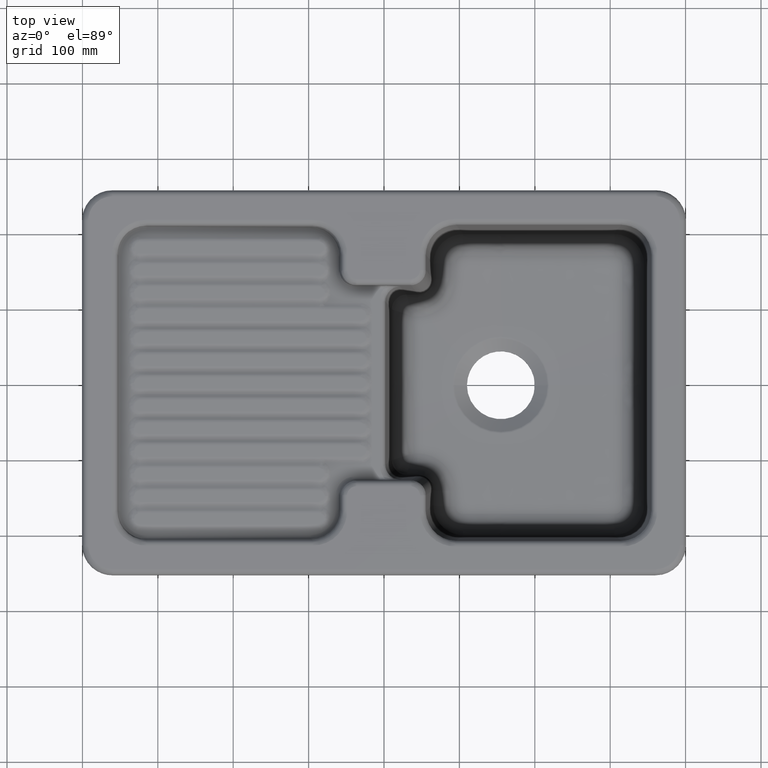
[diagram: clean part render]
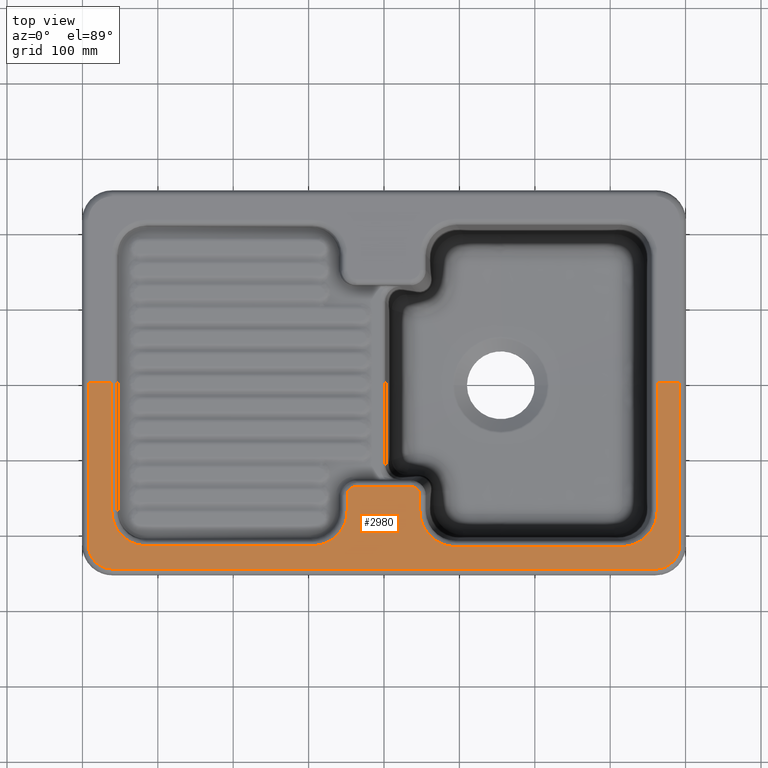
[diagram: same view with one face highlighted and labeled with its STEP entity id]
A machine part, top view. The second image highlights one B-rep face of the part: STEP entity #2980.
In plain terms, the highlighted planar face has unit normal (0, 0, -1).
Its self-contained STEP definition (entity closure, byte-faithful):
#2099=B_SPLINE_CURVE_WITH_KNOTS('',3,(#29776,#29777,#29778,#29779,#29780,
#29781,#29782,#29783,#29784,#29785,#29786,#29787),.UNSPECIFIED.,.F.,.F.,
(4,2,2,2,2,4),(0.,0.249999999999995,0.374999999999993,0.499999999999991,
0.749999999999995,1.),.UNSPECIFIED.);
#2101=B_SPLINE_CURVE_WITH_KNOTS('',3,(#29873,#29874,#29875,#29876,#29877,
#29878,#29879,#29880,#29881,#29882,#29883,#29884),.UNSPECIFIED.,.F.,.F.,
(4,2,2,2,2,4),(0.,0.250000000000008,0.375000000000006,0.500000000000004,
0.750000000000002,1.),.UNSPECIFIED.);
#2215=B_SPLINE_CURVE_WITH_KNOTS('',3,(#33276,#33277,#33278,#33279,#33280,
#33281,#33282,#33283,#33284,#33285,#33286,#33287,#33288,#33289),
 .UNSPECIFIED.,.F.,.F.,(4,2,2,2,2,2,4),(0.,0.25,0.5,0.625,0.75,0.875,1.),
 .UNSPECIFIED.);
#2217=B_SPLINE_CURVE_WITH_KNOTS('',3,(#33370,#33371,#33372,#33373,#33374,
#33375,#33376,#33377,#33378,#33379,#33380,#33381,#33382,#33383),
 .UNSPECIFIED.,.F.,.F.,(4,2,2,2,2,2,4),(0.,0.249999999999997,0.499999999999994,
0.624999999999995,0.749999999999997,0.874999999999998,1.),.UNSPECIFIED.);
#2219=B_SPLINE_CURVE_WITH_KNOTS('',3,(#33458,#33459,#33460,#33461,#33462,
#33463),.UNSPECIFIED.,.F.,.F.,(4,2,4),(0.,0.5,1.),.UNSPECIFIED.);
#2221=B_SPLINE_CURVE_WITH_KNOTS('',3,(#33526,#33527,#33528,#33529,#33530,
#33531),.UNSPECIFIED.,.F.,.F.,(4,2,4),(0.,0.5,1.),.UNSPECIFIED.);
#2223=B_SPLINE_CURVE_WITH_KNOTS('',3,(#33598,#33599,#33600,#33601,#33602,
#33603,#33604,#33605,#33606,#33607,#33608,#33609,#33610,#33611),
 .UNSPECIFIED.,.F.,.F.,(4,2,2,2,2,2,4),(0.,0.250000000000003,0.500000000000006,
0.625000000000005,0.750000000000003,0.875000000000002,1.),.UNSPECIFIED.);
#2225=B_SPLINE_CURVE_WITH_KNOTS('',3,(#33673,#33674,#33675,#33676,#33677,
#33678,#33679,#33680,#33681,#33682,#33683,#33684,#33685,#33686),
 .UNSPECIFIED.,.F.,.F.,(4,2,2,2,2,2,4),(0.,0.25,0.5,0.625,0.75,0.875,1.),
 .UNSPECIFIED.);
#2980=ADVANCED_FACE('',(#3813),#3073,.F.);
#3073=PLANE('',#12418);
#3813=FACE_OUTER_BOUND('',#4578,.T.);
#4578=EDGE_LOOP('',(#8011,#8012,#8013,#8014,#8015,#8016,#8017,#8018,#8019,
#8020,#8021,#8022,#8023,#8024,#8025,#8026,#8027,#8028,#8029,#8030));
#8011=ORIENTED_EDGE('',*,*,#10918,.F.);
#8012=ORIENTED_EDGE('',*,*,#10510,.F.);
#8013=ORIENTED_EDGE('',*,*,#10514,.F.);
#8014=ORIENTED_EDGE('',*,*,#10517,.F.);
#8015=ORIENTED_EDGE('',*,*,#10919,.F.);
#8016=ORIENTED_EDGE('',*,*,#10500,.T.);
#8017=ORIENTED_EDGE('',*,*,#10931,.F.);
#8018=ORIENTED_EDGE('',*,*,#10868,.F.);
#8019=ORIENTED_EDGE('',*,*,#10867,.F.);
#8020=ORIENTED_EDGE('',*,*,#10864,.F.);
#8021=ORIENTED_EDGE('',*,*,#10861,.F.);
#8022=ORIENTED_EDGE('',*,*,#10858,.F.);
#8023=ORIENTED_EDGE('',*,*,#10855,.F.);
#8024=ORIENTED_EDGE('',*,*,#10852,.F.);
#8025=ORIENTED_EDGE('',*,*,#10849,.F.);
#8026=ORIENTED_EDGE('',*,*,#10846,.F.);
#8027=ORIENTED_EDGE('',*,*,#10843,.F.);
#8028=ORIENTED_EDGE('',*,*,#10840,.F.);
#8029=ORIENTED_EDGE('',*,*,#10928,.F.);
#8030=ORIENTED_EDGE('',*,*,#10499,.T.);
#8920=VERTEX_POINT('',#29644);
#8921=VERTEX_POINT('',#29648);
#8930=VERTEX_POINT('',#29734);
#8933=VERTEX_POINT('',#29752);
#8936=VERTEX_POINT('',#29774);
#8938=VERTEX_POINT('',#29788);
#8940=VERTEX_POINT('',#29856);
#8942=VERTEX_POINT('',#29871);
#9132=VERTEX_POINT('',#33256);
#9134=VERTEX_POINT('',#33275);
#9136=VERTEX_POINT('',#33340);
#9138=VERTEX_POINT('',#33353);
#9140=VERTEX_POINT('',#33434);
#9142=VERTEX_POINT('',#33445);
#9144=VERTEX_POINT('',#33502);
#9146=VERTEX_POINT('',#33513);
#9148=VERTEX_POINT('',#33570);
#9150=VERTEX_POINT('',#33581);
#9152=VERTEX_POINT('',#33662);
#9153=VERTEX_POINT('',#33687);
#10499=EDGE_CURVE('',#8930,#8920,#11116,.T.);
#10500=EDGE_CURVE('',#8921,#8933,#11117,.T.);
#10510=EDGE_CURVE('',#8936,#8938,#2099,.T.);
#10514=EDGE_CURVE('',#8940,#8936,#11125,.T.);
#10517=EDGE_CURVE('',#8942,#8940,#2101,.T.);
#10840=EDGE_CURVE('',#9134,#9132,#2215,.T.);
#10843=EDGE_CURVE('',#9132,#9136,#11158,.T.);
#10846=EDGE_CURVE('',#9136,#9138,#2217,.T.);
#10849=EDGE_CURVE('',#9138,#9140,#11159,.T.);
#10852=EDGE_CURVE('',#9140,#9142,#2219,.T.);
#10855=EDGE_CURVE('',#9142,#9144,#11160,.T.);
#10858=EDGE_CURVE('',#9144,#9146,#2221,.T.);
#10861=EDGE_CURVE('',#9146,#9148,#11161,.T.);
#10864=EDGE_CURVE('',#9148,#9150,#2223,.T.);
#10867=EDGE_CURVE('',#9150,#9152,#11162,.T.);
#10868=EDGE_CURVE('',#9152,#9153,#2225,.T.);
#10918=EDGE_CURVE('',#8938,#8920,#11178,.T.);
#10919=EDGE_CURVE('',#8921,#8942,#11179,.T.);
#10928=EDGE_CURVE('',#8930,#9134,#11182,.T.);
#10931=EDGE_CURVE('',#9153,#8933,#11183,.T.);
#11116=LINE('',#29755,#11371);
#11117=LINE('',#29756,#11372);
#11125=LINE('',#29858,#11380);
#11158=LINE('',#33349,#11413);
#11159=LINE('',#33441,#11414);
#11160=LINE('',#33509,#11415);
#11161=LINE('',#33577,#11416);
#11162=LINE('',#33671,#11417);
#11178=LINE('',#34306,#11433);
#11179=LINE('',#34308,#11434);
#11182=LINE('',#34373,#11437);
#11183=LINE('',#34387,#11438);
#11371=VECTOR('',#14068,1.);
#11372=VECTOR('',#14069,1.);
#11380=VECTOR('',#14097,1.);
#11413=VECTOR('',#14500,1.);
#11414=VECTOR('',#14507,1.);
#11415=VECTOR('',#14514,1.);
#11416=VECTOR('',#14521,1.);
#11417=VECTOR('',#14528,1.);
#11433=VECTOR('',#14594,1.);
#11434=VECTOR('',#14597,1.);
#11437=VECTOR('',#14608,1.);
#11438=VECTOR('',#14611,1.);
#12418=AXIS2_PLACEMENT_3D('',#34389,#14614,#14615);
#14068=DIRECTION('',(-1.,0.,0.));
#14069=DIRECTION('',(-1.,0.,0.));
#14097=DIRECTION('',(-1.,0.,0.));
#14500=DIRECTION('',(1.,0.,0.));
#14507=DIRECTION('',(0.,1.,0.));
#14514=DIRECTION('',(1.,0.,0.));
#14521=DIRECTION('',(0.,-1.,0.));
#14528=DIRECTION('',(1.,0.,0.));
#14594=DIRECTION('',(0.,1.,0.));
#14597=DIRECTION('',(0.,-1.,0.));
#14608=DIRECTION('',(0.,-1.,0.));
#14611=DIRECTION('',(0.,1.,0.));
#14614=DIRECTION('',(0.,0.,-1.));
#14615=DIRECTION('',(-0.843227198057324,-0.537557338761545,0.));
#29644=CARTESIAN_POINT('',(-392.274489801543,-1000.,1.27136050082167E-15));
#29648=CARTESIAN_POINT('',(392.274489801543,-1000.,7.87032690984846E-16));
#29734=CARTESIAN_POINT('',(-361.138615903832,-1000.,-6.73469210353864E-16));
#29752=CARTESIAN_POINT('',(362.460120689102,-1000.,-7.62351613413351E-15));
#29755=CARTESIAN_POINT('',(2.32730501537048E-11,-1000.,0.));
#29756=CARTESIAN_POINT('',(2.32730501537048E-11,-1000.,0.));
#29774=CARTESIAN_POINT('',(-360.293983336932,-1247.27448980154,1.21081952459207E-15));
#29776=CARTESIAN_POINT('',(-360.293983336932,-1247.27448980154,1.57406538196968E-15));
#29777=CARTESIAN_POINT('',(-364.517329554825,-1247.27448980154,1.57406538196968E-15));
#29778=CARTESIAN_POINT('',(-368.661595000097,-1246.44455137151,4.4273703293468E-15));
#29779=CARTESIAN_POINT('',(-374.469153580035,-1244.04030812303,4.4273703293468E-15));
#29780=CARTESIAN_POINT('',(-376.305504669587,-1243.05935085901,8.39109470512569E-16));
#29781=CARTESIAN_POINT('',(-379.780959229932,-1240.74151905375,8.39109470512569E-16));
#29782=CARTESIAN_POINT('',(-381.426765900565,-1239.39212300535,6.84526171871419E-16));
#29783=CARTESIAN_POINT('',(-385.851940693714,-1234.97013953948,6.84526171871419E-16));
#29784=CARTESIAN_POINT('',(-388.234774299186,-1231.40519631308,-2.05632370570894E-15));
#29785=CARTESIAN_POINT('',(-391.426785408092,-1223.71420346774,-2.05632370570894E-15));
#29786=CARTESIAN_POINT('',(-392.274489801543,-1219.51734794787,-1.73333694994851E-30));
#29787=CARTESIAN_POINT('',(-392.274489801543,-1215.29398333693,0.));
#29788=CARTESIAN_POINT('',(-392.274489801543,-1215.29398333693,-2.11893416803612E-16));
#29856=CARTESIAN_POINT('',(360.293983336932,-1247.27448980154,1.6951473344289E-15));
#29858=CARTESIAN_POINT('',(4.58834359395865E-13,-1247.27448980154,-2.32013964925119E-15));
#29871=CARTESIAN_POINT('',(392.274489801543,-1215.29398333693,-3.02704881148018E-16));
#29873=CARTESIAN_POINT('',(392.274489801543,-1215.29398333693,-1.21081952459207E-15));
#29874=CARTESIAN_POINT('',(392.274489801543,-1219.51732955483,-1.21081952459207E-15));
#29875=CARTESIAN_POINT('',(391.444551371508,-1223.6615950001,-2.84616664029437E-15));
#29876=CARTESIAN_POINT('',(389.040308123033,-1229.46915358004,-2.84616664029437E-15));
#29877=CARTESIAN_POINT('',(388.059350859005,-1231.30550466959,-5.70594439948545E-15));
#29878=CARTESIAN_POINT('',(385.741519053751,-1234.78095922993,-5.70594439948545E-15));
#29879=CARTESIAN_POINT('',(384.39212300535,-1236.42676590057,7.35865634761775E-15));
#29880=CARTESIAN_POINT('',(379.970139539484,-1240.85194069371,7.35865634761775E-15));
#29881=CARTESIAN_POINT('',(376.405196313082,-1243.23477429919,-6.01079237053386E-15));
#29882=CARTESIAN_POINT('',(368.714203467738,-1246.42678540809,-6.01079237053387E-15));
#29883=CARTESIAN_POINT('',(364.517347947873,-1247.27448980154,3.2740809054583E-30));
#29884=CARTESIAN_POINT('',(360.293983336932,-1247.27448980154,0.));
#33256=CARTESIAN_POINT('',(-314.774176241956,-1216.13861590383,-1.79591789427697E-15));
#33275=CARTESIAN_POINT('',(-361.138615903832,-1169.77417624196,6.2857126299694E-15));
#33276=CARTESIAN_POINT('',(-361.138615903832,-1169.77417624196,5.38775368283091E-15));
#33277=CARTESIAN_POINT('',(-361.138615903832,-1175.91279851482,5.3877536828309E-15));
#33278=CARTESIAN_POINT('',(-359.977217853305,-1182.02439924387,-2.8562594910022E-14));
#33279=CARTESIAN_POINT('',(-355.442352857194,-1193.26105264888,-2.8562594910022E-14));
#33280=CARTESIAN_POINT('',(-352.016683617962,-1198.47124465461,3.93406723000387E-14));
#33281=CARTESIAN_POINT('',(-345.57822537801,-1204.90270652843,3.93406723000387E-14));
#33282=CARTESIAN_POINT('',(-343.174918866313,-1206.85730476726,-3.74187096175895E-14));
#33283=CARTESIAN_POINT('',(-338.10683760873,-1210.18913072898,-3.74187096175895E-14));
#33284=CARTESIAN_POINT('',(-335.425868873907,-1211.58989507352,-1.48468044103225E-14));
#33285=CARTESIAN_POINT('',(-329.772167722518,-1213.86490270115,-1.48468044103225E-14));
#33286=CARTESIAN_POINT('',(-326.81372904715,-1214.72530053418,9.33400698900873E-15));
#33287=CARTESIAN_POINT('',(-320.864213959035,-1215.85555851891,9.33400698900873E-15));
#33288=CARTESIAN_POINT('',(-317.84267004131,-1216.13861590383,-3.23265220969855E-14));
#33289=CARTESIAN_POINT('',(-314.774176241956,-1216.13861590383,-3.23265220969855E-14));
#33340=CARTESIAN_POINT('',(-95.2258237580436,-1216.13861590383,-1.45918328910004E-14));
#33349=CARTESIAN_POINT('',(-205.,-1216.13861590383,-1.70933283958628E-15));
#33353=CARTESIAN_POINT('',(-48.8613840961683,-1169.77417624196,-8.97958947138486E-16));
#33370=CARTESIAN_POINT('',(-95.2258237580436,-1216.13861590383,-9.87754841852333E-15));
#33371=CARTESIAN_POINT('',(-89.0872014851833,-1216.13861590383,-9.87754841852333E-15));
#33372=CARTESIAN_POINT('',(-82.9756007561317,-1214.9772178533,2.39925797244185E-14));
#33373=CARTESIAN_POINT('',(-71.7389473511155,-1210.44235285719,2.39925797244185E-14));
#33374=CARTESIAN_POINT('',(-66.5287553453876,-1207.01668361796,-2.3358524178148E-14));
#33375=CARTESIAN_POINT('',(-60.0972934715674,-1200.57822537801,-2.3358524178148E-14));
#33376=CARTESIAN_POINT('',(-58.1426952327418,-1198.17491886631,-4.82822059581801E-15));
#33377=CARTESIAN_POINT('',(-54.8108692710158,-1193.10683760873,-4.828220595818E-15));
#33378=CARTESIAN_POINT('',(-53.4101049264782,-1190.42586887391,-2.51253613097766E-14));
#33379=CARTESIAN_POINT('',(-51.1350972988546,-1184.77216772252,-2.51253613097766E-14));
#33380=CARTESIAN_POINT('',(-50.2746994658161,-1181.81372904715,3.11133566300292E-15));
#33381=CARTESIAN_POINT('',(-49.1444414810867,-1175.86421395903,3.1113356630029E-15));
#33382=CARTESIAN_POINT('',(-48.8613840961683,-1172.84267004131,-1.07755073656619E-14));
#33383=CARTESIAN_POINT('',(-48.8613840961682,-1169.77417624196,-1.07755073656619E-14));
#33434=CARTESIAN_POINT('',(-48.8613840961683,-1149.27224277774,1.79591789427697E-15));
#33441=CARTESIAN_POINT('',(-48.8613840961683,-1159.52320950985,-2.64485609176266E-16));
#33445=CARTESIAN_POINT('',(-36.6623642209263,-1137.4601206891,-1.51260240756617E-15));
#33458=CARTESIAN_POINT('',(-48.8613840961683,-1149.27224277774,1.34693842070773E-15));
#33459=CARTESIAN_POINT('',(-48.8613840961683,-1146.09856064932,1.34693842070773E-15));
#33460=CARTESIAN_POINT('',(-47.5013679328048,-1143.00353906352,-2.76367225693955E-14));
#33461=CARTESIAN_POINT('',(-42.9682046851732,-1138.68198835866,-2.76367225693955E-14));
#33462=CARTESIAN_POINT('',(-39.8334927640833,-1137.4601206891,-1.3684555315672E-45));
#33463=CARTESIAN_POINT('',(-36.6623642209263,-1137.4601206891,-4.08778687189412E-45));
#33502=CARTESIAN_POINT('',(35.5691107077808,-1137.4601206891,-2.42016385210588E-16));
#33509=CARTESIAN_POINT('',(-0.54662675657273,-1137.4601206891,-7.07548399734835E-17));
#33513=CARTESIAN_POINT('',(47.5398793108987,-1149.43088929222,1.21008192605294E-16));
#33526=CARTESIAN_POINT('',(35.5691107077808,-1137.4601206891,1.8151228890794E-16));
#33527=CARTESIAN_POINT('',(38.7312427671155,-1137.4601206891,1.81512288907939E-16));
#33528=CARTESIAN_POINT('',(41.8251351935783,-1138.75227625546,-2.39003196713884E-15));
#33529=CARTESIAN_POINT('',(46.2431042349761,-1143.1669737223,-2.39003196713884E-15));
#33530=CARTESIAN_POINT('',(47.5398793108986,-1146.26870183008,-1.14037960963934E-46));
#33531=CARTESIAN_POINT('',(47.5398793108986,-1149.43088929222,-3.53513021457057E-46));
#33570=CARTESIAN_POINT('',(47.5398793108986,-1169.57704627663,-4.23528674118528E-16));
#33577=CARTESIAN_POINT('',(47.5398793108987,-1159.50396778443,-2.96470572792957E-16));
#33581=CARTESIAN_POINT('',(95.4229537233703,-1217.4601206891,-2.42016385210587E-15));
#33598=CARTESIAN_POINT('',(47.5398793108986,-1169.57704627663,-9.68065540842351E-16));
#33599=CARTESIAN_POINT('',(47.5398793108986,-1175.90142120092,-9.68065540842351E-16));
#33600=CARTESIAN_POINT('',(48.8050547959662,-1182.18681661394,-5.68233161692628E-15));
#33601=CARTESIAN_POINT('',(53.5788836441536,-1193.70732354929,-5.68233161692628E-15));
#33602=CARTESIAN_POINT('',(57.144948655987,-1199.04740602314,-6.48722962509115E-15));
#33603=CARTESIAN_POINT('',(63.7719022180838,-1205.66945222341,-6.48722962509115E-15));
#33604=CARTESIAN_POINT('',(66.2371375062815,-1207.68978291647,-2.00911073086791E-15));
#33605=CARTESIAN_POINT('',(71.4425079946072,-1211.15851860435,-2.00911073086791E-15));
#33606=CARTESIAN_POINT('',(74.1930942230476,-1212.62601950234,-3.78681858919884E-15));
#33607=CARTESIAN_POINT('',(79.9924370244575,-1215.02301399834,-3.78681858919883E-15));
#33608=CARTESIAN_POINT('',(83.0327810640375,-1215.94018779995,-9.37678287475179E-15));
#33609=CARTESIAN_POINT('',(89.1511605063189,-1217.15142888648,-9.37678287475179E-15));
#33610=CARTESIAN_POINT('',(92.2608216640354,-1217.4601206891,-2.03293763576893E-14));
#33611=CARTESIAN_POINT('',(95.4229537233703,-1217.4601206891,-2.03293763576893E-14));
#33662=CARTESIAN_POINT('',(314.57704627663,-1217.4601206891,1.16772905864109E-14));
#33671=CARTESIAN_POINT('',(205.,-1217.4601206891,8.41587244928055E-15));
#33673=CARTESIAN_POINT('',(314.57704627663,-1217.4601206891,8.47057348237059E-15));
#33674=CARTESIAN_POINT('',(320.901421200916,-1217.4601206891,8.47057348237058E-15));
#33675=CARTESIAN_POINT('',(327.186816613942,-1216.19494520403,-2.5254807186339E-15));
#33676=CARTESIAN_POINT('',(338.707323549294,-1211.42111635585,-2.52548071863391E-15));
#33677=CARTESIAN_POINT('',(344.047406023141,-1207.85505134401,2.52660522240392E-14));
#33678=CARTESIAN_POINT('',(350.66945222341,-1201.22809778192,2.52660522240392E-14));
#33679=CARTESIAN_POINT('',(352.689782916468,-1198.76286249372,8.03644292347166E-15));
#33680=CARTESIAN_POINT('',(356.158518604346,-1193.55749200539,8.03644292347166E-15));
#33681=CARTESIAN_POINT('',(357.626019502339,-1190.80690577695,6.9425007468645E-15));
#33682=CARTESIAN_POINT('',(360.023013998342,-1185.00756297554,6.9425007468645E-15));
#33683=CARTESIAN_POINT('',(360.94018779995,-1181.96721893596,4.26217403397806E-15));
#33684=CARTESIAN_POINT('',(362.151428886476,-1175.84883949368,4.26217403397806E-15));
#33685=CARTESIAN_POINT('',(362.460120689102,-1172.73917833596,-1.4520983112635E-14));
#33686=CARTESIAN_POINT('',(362.460120689102,-1169.57704627663,-1.4520983112635E-14));
#33687=CARTESIAN_POINT('',(362.460120689101,-1169.57704627663,-1.45209831126352E-15));
#34306=CARTESIAN_POINT('',(-392.274489801543,-1107.64699166847,-3.48339175834838E-16));
#34308=CARTESIAN_POINT('',(392.274489801543,-1107.64699166847,-6.77178483906103E-16));
#34373=CARTESIAN_POINT('',(-361.138615903832,-1084.88708812098,2.80612170980777E-15));
#34387=CARTESIAN_POINT('',(362.460120689101,-1084.78852313832,-7.50350836946969E-15));
#34389=CARTESIAN_POINT('',(694.291745361626,-1118.38901233196,0.));